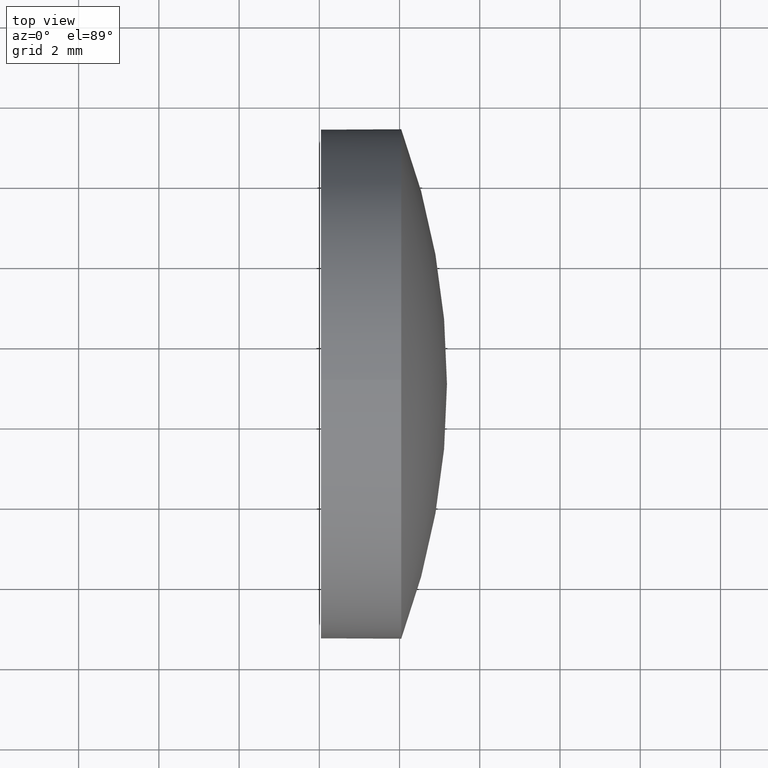
[diagram: clean part render]
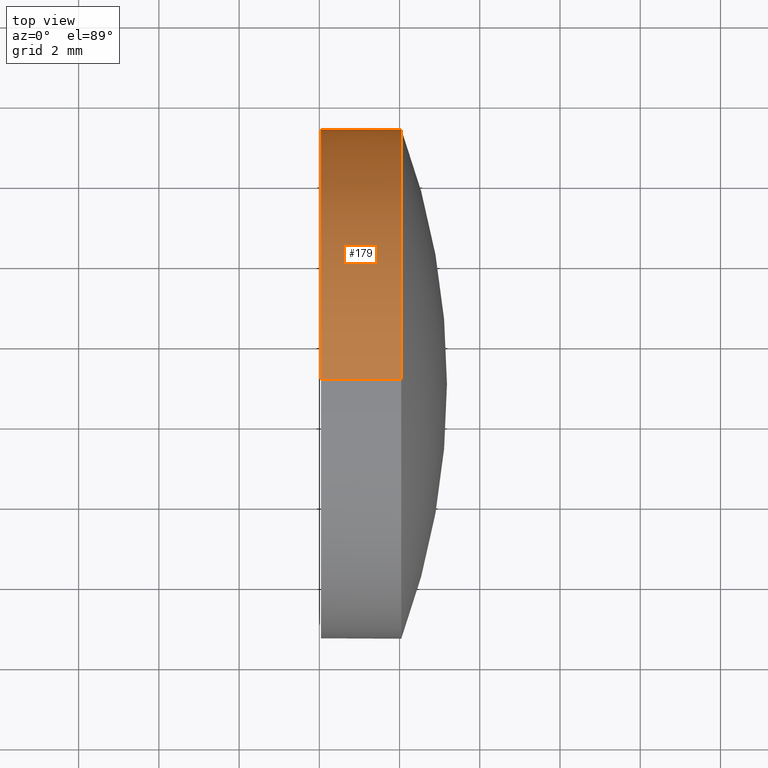
[diagram: same view with one face highlighted and labeled with its STEP entity id]
A machine part, top view. The second image highlights one B-rep face of the part: STEP entity #179.
In plain terms, the highlighted cylindrical surface (partial cylindrical patch) has radius 6.35 mm, axis along (-1, -0, -0).
Its self-contained STEP definition (entity closure, byte-faithful):
#2 = CIRCLE ( 'NONE', #55, 6.350000000000000500 ) ;
#13 = CIRCLE ( 'NONE', #66, 6.350000000000000500 ) ;
#23 = AXIS2_PLACEMENT_3D ( 'NONE', #127, #156, #76 ) ;
#35 = ORIENTED_EDGE ( 'NONE', *, *, #96, .T. ) ;
#40 = VERTEX_POINT ( 'NONE', #109 ) ;
#42 = CARTESIAN_POINT ( 'NONE',  ( 454.0422824048600900, -0.9922208549258472200, 6.350000000000000500 ) ) ;
#45 = DIRECTION ( 'NONE',  ( -1.000000000000000000, -0.0000000000000000000, -0.0000000000000000000 ) ) ;
#46 = CIRCLE ( 'NONE', #23, 6.350000000000000500 ) ;
#50 = VECTOR ( 'NONE', #150, 1000.000000000000000 ) ;
#55 = AXIS2_PLACEMENT_3D ( 'NONE', #153, #111, #140 ) ;
#57 = CYLINDRICAL_SURFACE ( 'NONE', #62, 6.350000000000000500 ) ;
#58 = DIRECTION ( 'NONE',  ( 0.0000000000000000000, 0.0000000000000000000, 1.000000000000000000 ) ) ;
#61 = EDGE_LOOP ( 'NONE', ( #35, #113, #168, #128, #98 ) ) ;
#62 = AXIS2_PLACEMENT_3D ( 'NONE', #80, #183, #58 ) ;
#65 = VECTOR ( 'NONE', #143, 1000.000000000000000 ) ;
#66 = AXIS2_PLACEMENT_3D ( 'NONE', #155, #45, #112 ) ;
#67 = VERTEX_POINT ( 'NONE', #93 ) ;
#69 = EDGE_CURVE ( 'NONE', #171, #40, #88, .T. ) ;
#76 = DIRECTION ( 'NONE',  ( 0.0000000000000000000, 0.0000000000000000000, 1.000000000000000000 ) ) ;
#80 = CARTESIAN_POINT ( 'NONE',  ( 449.7142539148659900, -0.9922208549258472200, 0.0000000000000000000 ) ) ;
#82 = LINE ( 'NONE', #166, #50 ) ;
#88 = LINE ( 'NONE', #165, #65 ) ;
#93 = CARTESIAN_POINT ( 'NONE',  ( 454.0422824048600900, 5.357779145074143700, 7.776507174585654700E-016 ) ) ;
#96 = EDGE_CURVE ( 'NONE', #67, #171, #13, .T. ) ;
#98 = ORIENTED_EDGE ( 'NONE', *, *, #130, .T. ) ;
#103 = EDGE_CURVE ( 'NONE', #160, #178, #82, .T. ) ;
#109 = CARTESIAN_POINT ( 'NONE',  ( 452.0422824048600900, -0.9922208549258463300, -6.350000000000000500 ) ) ;
#111 = DIRECTION ( 'NONE',  ( -1.000000000000000000, -0.0000000000000000000, -0.0000000000000000000 ) ) ;
#112 = DIRECTION ( 'NONE',  ( 0.0000000000000000000, 0.0000000000000000000, 1.000000000000000000 ) ) ;
#113 = ORIENTED_EDGE ( 'NONE', *, *, #69, .T. ) ;
#122 = FACE_OUTER_BOUND ( 'NONE', #61, .T. ) ;
#127 = CARTESIAN_POINT ( 'NONE',  ( 454.0422824048600900, -0.9922208549258472200, 0.0000000000000000000 ) ) ;
#128 = ORIENTED_EDGE ( 'NONE', *, *, #103, .F. ) ;
#130 = EDGE_CURVE ( 'NONE', #160, #67, #46, .T. ) ;
#140 = DIRECTION ( 'NONE',  ( 0.0000000000000000000, 0.0000000000000000000, 1.000000000000000000 ) ) ;
#141 = CARTESIAN_POINT ( 'NONE',  ( 452.0422824048600900, -0.9922208549258472200, 6.350000000000000500 ) ) ;
#143 = DIRECTION ( 'NONE',  ( -1.000000000000000000, -0.0000000000000000000, -0.0000000000000000000 ) ) ;
#144 = CARTESIAN_POINT ( 'NONE',  ( 454.0422824048600900, -0.9922208549258463300, -6.350000000000000500 ) ) ;
#150 = DIRECTION ( 'NONE',  ( -1.000000000000000000, -0.0000000000000000000, -0.0000000000000000000 ) ) ;
#153 = CARTESIAN_POINT ( 'NONE',  ( 452.0422824048600900, -0.9922208549258472200, 0.0000000000000000000 ) ) ;
#155 = CARTESIAN_POINT ( 'NONE',  ( 454.0422824048600900, -0.9922208549258472200, 0.0000000000000000000 ) ) ;
#156 = DIRECTION ( 'NONE',  ( -1.000000000000000000, -0.0000000000000000000, -0.0000000000000000000 ) ) ;
#160 = VERTEX_POINT ( 'NONE', #42 ) ;
#164 = EDGE_CURVE ( 'NONE', #178, #40, #2, .T. ) ;
#165 = CARTESIAN_POINT ( 'NONE',  ( 449.7142539148659900, -0.9922208549258463300, -6.350000000000000500 ) ) ;
#166 = CARTESIAN_POINT ( 'NONE',  ( 449.7142539148659900, -0.9922208549258472200, 6.350000000000000500 ) ) ;
#168 = ORIENTED_EDGE ( 'NONE', *, *, #164, .F. ) ;
#171 = VERTEX_POINT ( 'NONE', #144 ) ;
#178 = VERTEX_POINT ( 'NONE', #141 ) ;
#179 = ADVANCED_FACE ( 'NONE', ( #122 ), #57, .T. ) ;
#183 = DIRECTION ( 'NONE',  ( -1.000000000000000000, -0.0000000000000000000, -0.0000000000000000000 ) ) ;